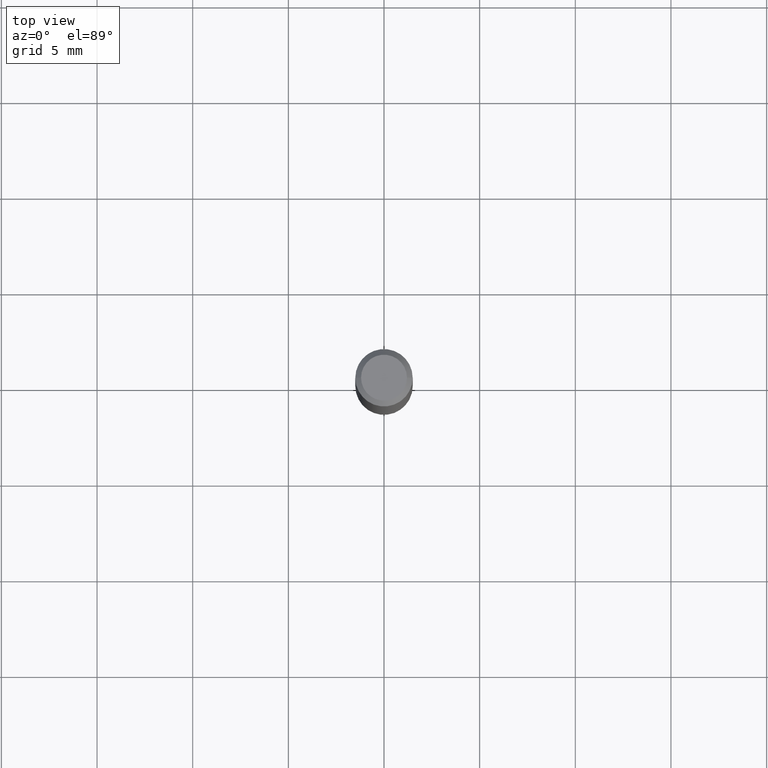
[diagram: clean part render]
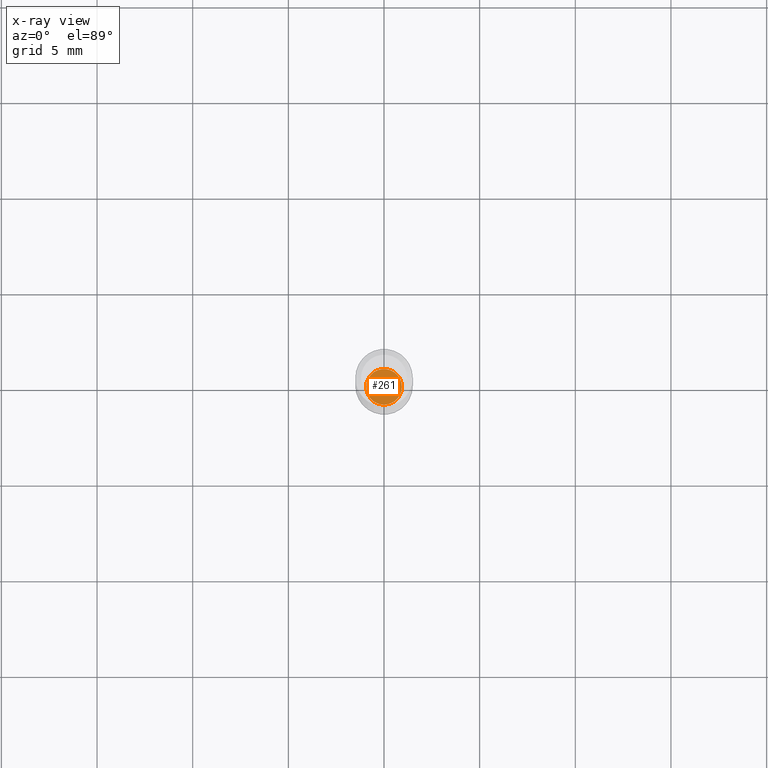
[diagram: x-ray — body ghosted, one internal face saturated and labeled with its STEP entity id]
A machine part, top view, then the same camera in x-ray: the body is ghosted and one INTERNAL B-rep face — a face not visible from any outside direction — is saturated and labeled: STEP entity #261.
In plain terms, the highlighted planar face has unit normal (-0, 0, 1).
Its self-contained STEP definition (entity closure, byte-faithful):
#16 = AXIS2_PLACEMENT_3D ( 'NONE', #174, #141, #453 ) ;
#19 = VERTEX_POINT ( 'NONE', #85 ) ;
#57 = VERTEX_POINT ( 'NONE', #423 ) ;
#74 = EDGE_CURVE ( 'NONE', #57, #19, #391, .T. ) ;
#76 = ORIENTED_EDGE ( 'NONE', *, *, #74, .F. ) ;
#78 = AXIS2_PLACEMENT_3D ( 'NONE', #425, #233, #180 ) ;
#85 = CARTESIAN_POINT ( 'NONE',  ( 0.03669999999999999651, -4.077701055634908175E-15, -1.094499999999999806 ) ) ;
#141 = DIRECTION ( 'NONE',  ( -2.445468806185136597E-29, 3.491481338843145583E-15, 1.000000000000000000 ) ) ;
#174 = CARTESIAN_POINT ( 'NONE',  ( 2.676565608369631794E-29, -3.821426325363822773E-15, -1.094499999999999806 ) ) ;
#180 = DIRECTION ( 'NONE',  ( 1.000000000000000000, -6.982962677686265133E-15, 0.000000000000000000 ) ) ;
#233 = DIRECTION ( 'NONE',  ( -2.445468806185136597E-29, 3.491481338843145583E-15, 1.000000000000000000 ) ) ;
#244 = PLANE ( 'NONE',  #384 ) ;
#261 = ADVANCED_FACE ( 'NONE', ( #481 ), #244, .F. ) ;
#273 = EDGE_LOOP ( 'NONE', ( #295, #76 ) ) ;
#295 = ORIENTED_EDGE ( 'NONE', *, *, #440, .F. ) ;
#325 = DIRECTION ( 'NONE',  ( -2.438088387897960049E-29, 3.491481338843145188E-15, 1.000000000000000000 ) ) ;
#345 = CIRCLE ( 'NONE', #16, 0.03669999999999999651 ) ;
#363 = CARTESIAN_POINT ( 'NONE',  ( 2.676565608369631794E-29, -3.821426325363822773E-15, -1.094499999999999806 ) ) ;
#384 = AXIS2_PLACEMENT_3D ( 'NONE', #363, #325, #439 ) ;
#391 = CIRCLE ( 'NONE', #78, 0.03669999999999999651 ) ;
#423 = CARTESIAN_POINT ( 'NONE',  ( -0.03669999999999999651, -3.558007914165755125E-15, -1.094499999999999806 ) ) ;
#425 = CARTESIAN_POINT ( 'NONE',  ( 2.676565608369631794E-29, -3.821426325363822773E-15, -1.094499999999999806 ) ) ;
#439 = DIRECTION ( 'NONE',  ( 1.000000000000000000, -6.982962677686265922E-15, 4.876176775795935793E-29 ) ) ;
#440 = EDGE_CURVE ( 'NONE', #19, #57, #345, .T. ) ;
#453 = DIRECTION ( 'NONE',  ( 1.000000000000000000, -6.982962677686265133E-15, 0.000000000000000000 ) ) ;
#481 = FACE_OUTER_BOUND ( 'NONE', #273, .T. ) ;